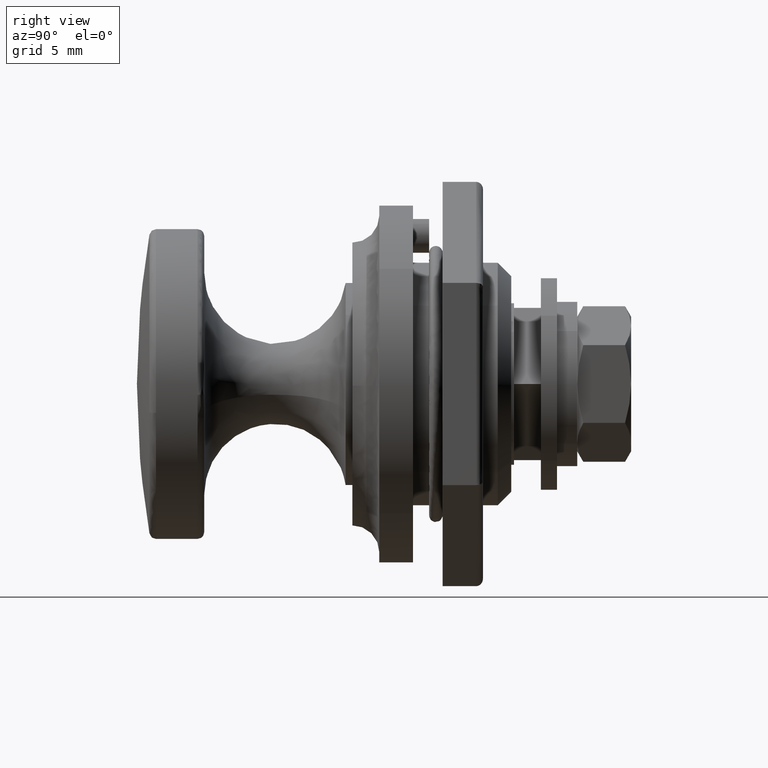
[diagram: clean part render]
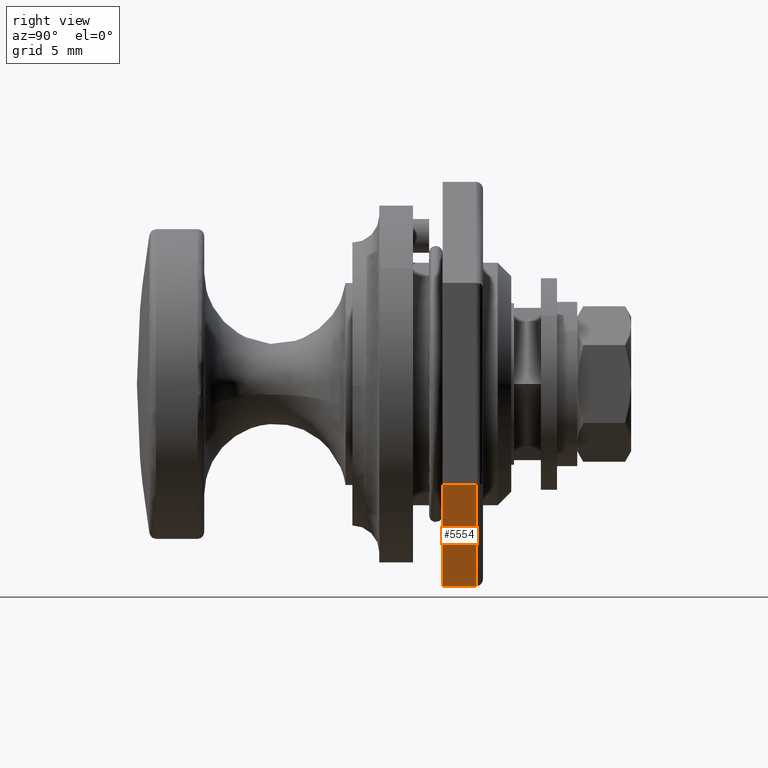
[diagram: same view with one face highlighted and labeled with its STEP entity id]
A machine part, right view. The second image highlights one B-rep face of the part: STEP entity #5554.
In plain terms, the highlighted face is a freeform B-spline surface patch.
Its self-contained STEP definition (entity closure, byte-faithful):
#5356=CARTESIAN_POINT('',(4.699999999999930,-13.0,-7.505552999999790));
#5357=VERTEX_POINT('',#5356);
#5403=CARTESIAN_POINT('',(4.699999999999930,0.0,-15.011106999999800));
#5404=VERTEX_POINT('',#5403);
#5447=CARTESIAN_POINT('',(4.699999999999930,0.0,-15.011106999999800));
#5448=CARTESIAN_POINT('',(4.699999999999930,-13.0,-7.505552999999790));
#5449=QUASI_UNIFORM_CURVE('',1,(#5447,#5448),.UNSPECIFIED.,.F.,.U.);
#5450=EDGE_CURVE('',#5404,#5357,#5449,.T.);
#5518=CARTESIAN_POINT('',(2.200000000000000,0.0,-15.011106999999800));
#5519=VERTEX_POINT('',#5518);
#5520=CARTESIAN_POINT('',(4.699999999999930,0.0,-15.011106999999800));
#5521=CARTESIAN_POINT('',(2.200000000000000,0.0,-15.011106999999800));
#5522=QUASI_UNIFORM_CURVE('',1,(#5520,#5521),.UNSPECIFIED.,.F.,.U.);
#5523=EDGE_CURVE('',#5404,#5519,#5522,.T.);
#5533=CARTESIAN_POINT('',(2.075125060713667,0.649350218872870,-15.386009548666131));
#5534=CARTESIAN_POINT('',(2.075125060713667,-13.649350335101930,-7.130650384228584));
#5535=CARTESIAN_POINT('',(4.824874872231037,0.649350218872870,-15.386009548666131));
#5536=CARTESIAN_POINT('',(4.824874872231037,-13.649350335101930,-7.130650384228584));
#5537=B_SPLINE_SURFACE_WITH_KNOTS('',1,1,((#5533,#5535),(#5534,#5536)),.UNSPECIFIED.,.F.,.F.,.U.,(2,2),(2,2),(0.0,16.510717503067589),(0.0,2.749749811517370),.UNSPECIFIED.);
#5538=ORIENTED_EDGE('',*,*,#5523,.F.);
#5539=ORIENTED_EDGE('',*,*,#5450,.T.);
#5540=CARTESIAN_POINT('',(2.200000000000000,-13.0,-7.505552999999790));
#5541=VERTEX_POINT('',#5540);
#5542=CARTESIAN_POINT('',(4.699999999999930,-13.0,-7.505552999999790));
#5543=CARTESIAN_POINT('',(2.200000000000000,-13.0,-7.505552999999790));
#5544=QUASI_UNIFORM_CURVE('',1,(#5542,#5543),.UNSPECIFIED.,.F.,.U.);
#5545=EDGE_CURVE('',#5357,#5541,#5544,.T.);
#5546=ORIENTED_EDGE('',*,*,#5545,.T.);
#5547=CARTESIAN_POINT('',(2.200000000000000,-13.0,-7.505552999999790));
#5548=CARTESIAN_POINT('',(2.200000000000000,0.0,-15.011106999999800));
#5549=QUASI_UNIFORM_CURVE('',1,(#5547,#5548),.UNSPECIFIED.,.F.,.U.);
#5550=EDGE_CURVE('',#5541,#5519,#5549,.T.);
#5551=ORIENTED_EDGE('',*,*,#5550,.T.);
#5552=EDGE_LOOP('',(#5538,#5539,#5546,#5551));
#5553=FACE_OUTER_BOUND('',#5552,.T.);
#5554=ADVANCED_FACE('',(#5553),#5537,.F.);